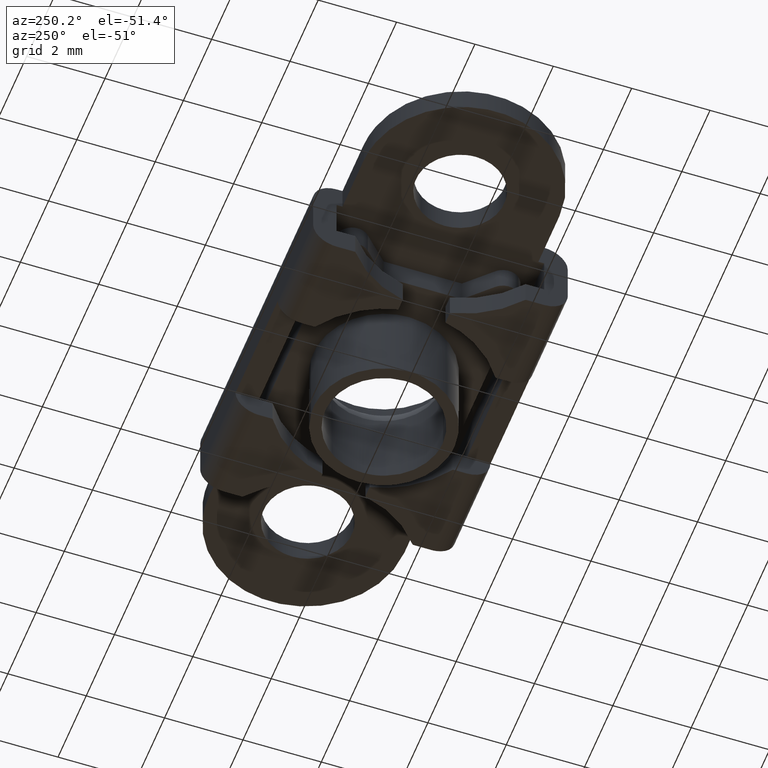
[diagram: clean part render]
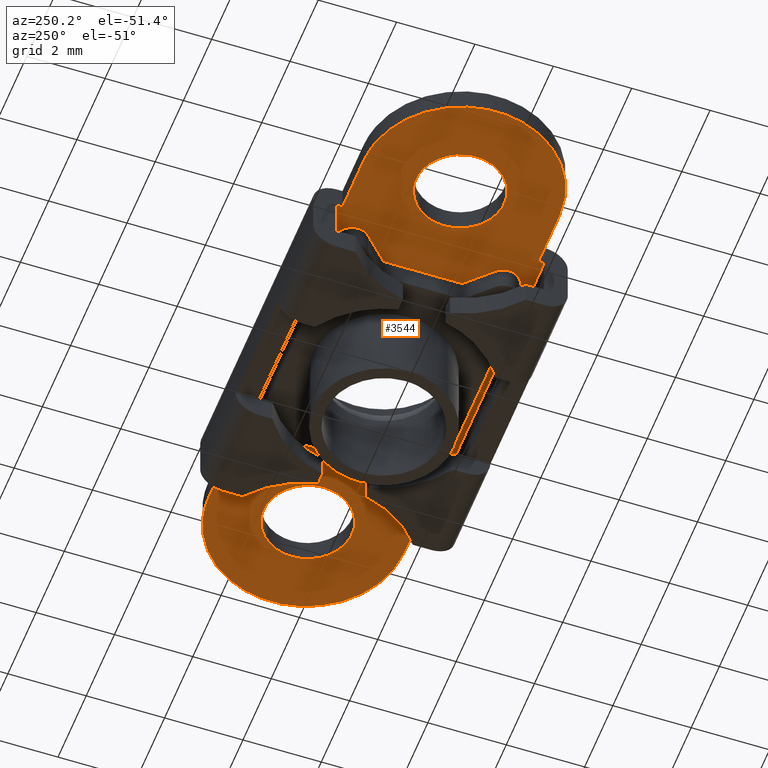
[diagram: same view with one face highlighted and labeled with its STEP entity id]
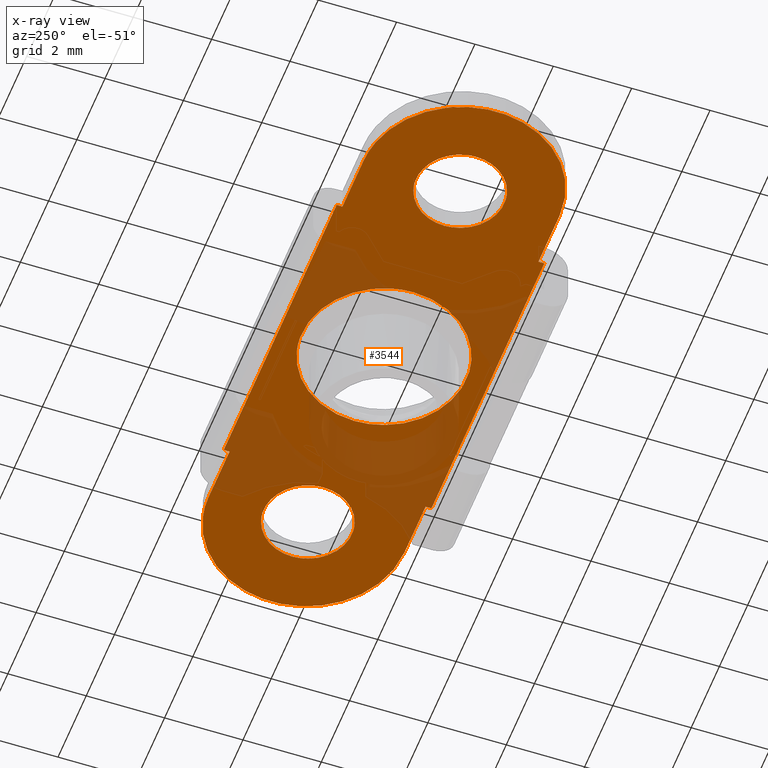
[diagram: x-ray of the same camera — body ghosted, the highlighted face saturated]
A machine part, auxiliary view. The second image highlights one B-rep face of the part: STEP entity #3544.
The next image is the same camera in x-ray: the body ghosted, the highlighted face saturated — about 28% of this face is hidden behind the body in this view.
In plain terms, the highlighted face is a freeform B-spline surface patch.
Its self-contained STEP definition (entity closure, byte-faithful):
#1241=CARTESIAN_POINT('',(0.128201933032470,2.096083076685353,-0.600000000000045));
#1242=VERTEX_POINT('',#1241);
#1248=CARTESIAN_POINT('',(2.100000000000000,0.0,-0.600000000000045));
#1249=VERTEX_POINT('',#1248);
#1250=CARTESIAN_POINT('',(2.100000000000000,0.0,-0.600000000000045));
#1251=CARTESIAN_POINT('',(2.100000000000000,1.975482740484448,-0.600000000000045));
#1252=CARTESIAN_POINT('',(0.128201933032470,2.096083076685353,-0.600000000000045));
#1260=(BOUNDED_CURVE()B_SPLINE_CURVE(2,(#1250,#1251,#1252),.UNSPECIFIED.,.F.,.U.)B_SPLINE_CURVE_WITH_KNOTS((3,3),(0.500000000000000,0.739332962240442),.UNSPECIFIED.)CURVE()GEOMETRIC_REPRESENTATION_ITEM()RATIONAL_B_SPLINE_CURVE((1.0,0.719603993284954,0.976072041669930))REPRESENTATION_ITEM(''));
#1261=EDGE_CURVE('',#1249,#1242,#1260,.T.);
#1263=CARTESIAN_POINT('',(-0.247871037823658,-2.085320106987769,-0.600000000000045));
#1264=VERTEX_POINT('',#1263);
#1265=CARTESIAN_POINT('',(-0.247871037823658,-2.085320106987769,-0.600000000000045));
#1266=CARTESIAN_POINT('',(-0.124369787275058,-2.100000000000000,-0.600000000000045));
#1267=CARTESIAN_POINT('',(0.0,-2.100000000000000,-0.600000000000045));
#1268=CARTESIAN_POINT('',(2.100000000000000,-2.100000000000000,-0.600000000000045));
#1269=CARTESIAN_POINT('',(2.100000000000000,0.0,-0.600000000000045));
#1277=(BOUNDED_CURVE()B_SPLINE_CURVE(2,(#1265,#1266,#1267,#1268,#1269),.UNSPECIFIED.,.F.,.U.)B_SPLINE_CURVE_WITH_KNOTS((3,2,3),(0.229562612094162,0.250000000000000,0.500000000000000),.UNSPECIFIED.)CURVE()GEOMETRIC_REPRESENTATION_ITEM()RATIONAL_B_SPLINE_CURVE((0.956027025807632,0.976056110688480,1.0,0.707106781186548,1.0))REPRESENTATION_ITEM(''));
#1278=EDGE_CURVE('',#1264,#1249,#1277,.T.);
#1322=CARTESIAN_POINT('',(-2.100000000000000,0.0,-0.600000000000045));
#1323=VERTEX_POINT('',#1322);
#1324=CARTESIAN_POINT('',(-2.100000000000000,0.0,-0.600000000000045));
#1325=CARTESIAN_POINT('',(-2.100000000000001,-1.865168044655403,-0.600000000000045));
#1326=CARTESIAN_POINT('',(-0.247871037823658,-2.085320106987769,-0.600000000000045));
#1334=(BOUNDED_CURVE()B_SPLINE_CURVE(2,(#1324,#1325,#1326),.UNSPECIFIED.,.F.,.U.)B_SPLINE_CURVE_WITH_KNOTS((3,3),(0.0,0.229562612094162),.UNSPECIFIED.)CURVE()GEOMETRIC_REPRESENTATION_ITEM()RATIONAL_B_SPLINE_CURVE((1.0,0.731050670498068,0.956027025807632))REPRESENTATION_ITEM(''));
#1335=EDGE_CURVE('',#1323,#1264,#1334,.T.);
#1337=CARTESIAN_POINT('',(0.128201933032470,2.096083076685354,-0.600000000000045));
#1338=CARTESIAN_POINT('',(0.064160802936333,2.100000000000000,-0.600000000000045));
#1339=CARTESIAN_POINT('',(0.0,2.100000000000000,-0.600000000000045));
#1340=CARTESIAN_POINT('',(-2.100000000000000,2.100000000000000,-0.600000000000045));
#1341=CARTESIAN_POINT('',(-2.100000000000000,0.0,-0.600000000000045));
#1349=(BOUNDED_CURVE()B_SPLINE_CURVE(2,(#1337,#1338,#1339,#1340,#1341),.UNSPECIFIED.,.F.,.U.)B_SPLINE_CURVE_WITH_KNOTS((3,2,3),(0.739332962240442,0.750000000000000,1.0),.UNSPECIFIED.)CURVE()GEOMETRIC_REPRESENTATION_ITEM()RATIONAL_B_SPLINE_CURVE((0.976072041669931,0.987502787901594,1.0,0.707106781186548,1.0))REPRESENTATION_ITEM(''));
#1350=EDGE_CURVE('',#1242,#1323,#1349,.T.);
#1427=CARTESIAN_POINT('',(5.468679606994622,1.122901648223505,-0.600000000000045));
#1428=VERTEX_POINT('',#1427);
#1434=CARTESIAN_POINT('',(6.525000000000000,0.0,-0.600000000000045));
#1435=VERTEX_POINT('',#1434);
#1436=CARTESIAN_POINT('',(6.525000000000000,0.0,-0.600000000000045));
#1437=CARTESIAN_POINT('',(6.525000000000000,1.058294325235089,-0.600000000000045));
#1438=CARTESIAN_POINT('',(5.468679606994622,1.122901648223505,-0.600000000000045));
#1446=(BOUNDED_CURVE()B_SPLINE_CURVE(2,(#1436,#1437,#1438),.UNSPECIFIED.,.F.,.U.)B_SPLINE_CURVE_WITH_KNOTS((3,3),(0.500000000000000,0.739332962236465),.UNSPECIFIED.)CURVE()GEOMETRIC_REPRESENTATION_ITEM()RATIONAL_B_SPLINE_CURVE((1.0,0.719603993289613,0.976072041661407))REPRESENTATION_ITEM(''));
#1447=EDGE_CURVE('',#1435,#1428,#1446,.T.);
#1449=CARTESIAN_POINT('',(5.267211486004993,-1.117135717158393,-0.600000000000045));
#1450=VERTEX_POINT('',#1449);
#1451=CARTESIAN_POINT('',(5.267211486004993,-1.117135717158393,-0.600000000000045));
#1452=CARTESIAN_POINT('',(5.333372865385383,-1.125000000000000,-0.600000000000045));
#1453=CARTESIAN_POINT('',(5.400000000000000,-1.125000000000000,-0.600000000000045));
#1454=CARTESIAN_POINT('',(6.525000000000000,-1.125000000000000,-0.600000000000045));
#1455=CARTESIAN_POINT('',(6.525000000000000,0.0,-0.600000000000045));
#1463=(BOUNDED_CURVE()B_SPLINE_CURVE(2,(#1451,#1452,#1453,#1454,#1455),.UNSPECIFIED.,.F.,.U.)B_SPLINE_CURVE_WITH_KNOTS((3,2,3),(0.229562473513782,0.250000000000000,0.500000000000000),.UNSPECIFIED.)CURVE()GEOMETRIC_REPRESENTATION_ITEM()RATIONAL_B_SPLINE_CURVE((0.956026754184236,0.976055948331466,1.0,0.707106781186547,1.0))REPRESENTATION_ITEM(''));
#1464=EDGE_CURVE('',#1450,#1435,#1463,.T.);
#1508=CARTESIAN_POINT('',(4.275000000000000,0.0,-0.600000000000045));
#1509=VERTEX_POINT('',#1508);
#1510=CARTESIAN_POINT('',(4.275000000000000,0.0,-0.600000000000045));
#1511=CARTESIAN_POINT('',(4.275000000000000,-0.999196341684201,-0.600000000000045));
#1512=CARTESIAN_POINT('',(5.267211486004993,-1.117135717158393,-0.600000000000045));
#1520=(BOUNDED_CURVE()B_SPLINE_CURVE(2,(#1510,#1511,#1512),.UNSPECIFIED.,.F.,.U.)B_SPLINE_CURVE_WITH_KNOTS((3,3),(0.0,0.229562473513782),.UNSPECIFIED.)CURVE()GEOMETRIC_REPRESENTATION_ITEM()RATIONAL_B_SPLINE_CURVE((1.0,0.731050832855082,0.956026754184236))REPRESENTATION_ITEM(''));
#1521=EDGE_CURVE('',#1509,#1450,#1520,.T.);
#1523=CARTESIAN_POINT('',(5.468679606994622,1.122901648223505,-0.600000000000045));
#1524=CARTESIAN_POINT('',(5.434371858728872,1.125000000000000,-0.600000000000045));
#1525=CARTESIAN_POINT('',(5.400000000000000,1.125000000000000,-0.600000000000045));
#1526=CARTESIAN_POINT('',(4.275000000000000,1.125000000000000,-0.600000000000045));
#1527=CARTESIAN_POINT('',(4.275000000000000,0.0,-0.600000000000045));
#1535=(BOUNDED_CURVE()B_SPLINE_CURVE(2,(#1523,#1524,#1525,#1526,#1527),.UNSPECIFIED.,.F.,.U.)B_SPLINE_CURVE_WITH_KNOTS((3,2,3),(0.739332962236465,0.750000000000000,1.0),.UNSPECIFIED.)CURVE()GEOMETRIC_REPRESENTATION_ITEM()RATIONAL_B_SPLINE_CURVE((0.976072041661407,0.987502787896934,1.0,0.707106781186547,1.0))REPRESENTATION_ITEM(''));
#1536=EDGE_CURVE('',#1428,#1509,#1535,.T.);
#1613=CARTESIAN_POINT('',(-5.331320393005379,1.122901648223505,-0.600000000000045));
#1614=VERTEX_POINT('',#1613);
#1620=CARTESIAN_POINT('',(-4.275000000000000,0.0,-0.600000000000045));
#1621=VERTEX_POINT('',#1620);
#1622=CARTESIAN_POINT('',(-4.275000000000000,0.0,-0.600000000000045));
#1623=CARTESIAN_POINT('',(-4.275000000000000,1.058294325235089,-0.600000000000045));
#1624=CARTESIAN_POINT('',(-5.331320393005379,1.122901648223505,-0.600000000000045));
#1632=(BOUNDED_CURVE()B_SPLINE_CURVE(2,(#1622,#1623,#1624),.UNSPECIFIED.,.F.,.U.)B_SPLINE_CURVE_WITH_KNOTS((3,3),(0.500000000000000,0.739332962236465),.UNSPECIFIED.)CURVE()GEOMETRIC_REPRESENTATION_ITEM()RATIONAL_B_SPLINE_CURVE((1.0,0.719603993289613,0.976072041661407))REPRESENTATION_ITEM(''));
#1633=EDGE_CURVE('',#1621,#1614,#1632,.T.);
#1635=CARTESIAN_POINT('',(-5.532788513995008,-1.117135717158393,-0.600000000000045));
#1636=VERTEX_POINT('',#1635);
#1637=CARTESIAN_POINT('',(-5.532788513995008,-1.117135717158393,-0.600000000000045));
#1638=CARTESIAN_POINT('',(-5.466627134614619,-1.125000000000000,-0.600000000000045));
#1639=CARTESIAN_POINT('',(-5.400000000000000,-1.125000000000000,-0.600000000000045));
#1640=CARTESIAN_POINT('',(-4.275000000000000,-1.125000000000000,-0.600000000000045));
#1641=CARTESIAN_POINT('',(-4.275000000000000,0.0,-0.600000000000045));
#1649=(BOUNDED_CURVE()B_SPLINE_CURVE(2,(#1637,#1638,#1639,#1640,#1641),.UNSPECIFIED.,.F.,.U.)B_SPLINE_CURVE_WITH_KNOTS((3,2,3),(0.229562473513782,0.250000000000000,0.500000000000000),.UNSPECIFIED.)CURVE()GEOMETRIC_REPRESENTATION_ITEM()RATIONAL_B_SPLINE_CURVE((0.956026754184236,0.976055948331466,1.0,0.707106781186547,1.0))REPRESENTATION_ITEM(''));
#1650=EDGE_CURVE('',#1636,#1621,#1649,.T.);
#1694=CARTESIAN_POINT('',(-6.525000000000000,0.0,-0.600000000000045));
#1695=VERTEX_POINT('',#1694);
#1696=CARTESIAN_POINT('',(-6.525000000000000,0.0,-0.600000000000045));
#1697=CARTESIAN_POINT('',(-6.525000000000000,-0.999196341684203,-0.600000000000045));
#1698=CARTESIAN_POINT('',(-5.532788513995008,-1.117135717158393,-0.600000000000045));
#1706=(BOUNDED_CURVE()B_SPLINE_CURVE(2,(#1696,#1697,#1698),.UNSPECIFIED.,.F.,.U.)B_SPLINE_CURVE_WITH_KNOTS((3,3),(0.0,0.229562473513782),.UNSPECIFIED.)CURVE()GEOMETRIC_REPRESENTATION_ITEM()RATIONAL_B_SPLINE_CURVE((1.0,0.731050832855081,0.956026754184236))REPRESENTATION_ITEM(''));
#1707=EDGE_CURVE('',#1695,#1636,#1706,.T.);
#1709=CARTESIAN_POINT('',(-5.331320393005379,1.122901648223504,-0.600000000000045));
#1710=CARTESIAN_POINT('',(-5.365628141271131,1.125000000000000,-0.600000000000045));
#1711=CARTESIAN_POINT('',(-5.400000000000000,1.125000000000000,-0.600000000000045));
#1712=CARTESIAN_POINT('',(-6.525000000000000,1.125000000000000,-0.600000000000045));
#1713=CARTESIAN_POINT('',(-6.525000000000000,0.0,-0.600000000000045));
#1721=(BOUNDED_CURVE()B_SPLINE_CURVE(2,(#1709,#1710,#1711,#1712,#1713),.UNSPECIFIED.,.F.,.U.)B_SPLINE_CURVE_WITH_KNOTS((3,2,3),(0.739332962236465,0.750000000000000,1.0),.UNSPECIFIED.)CURVE()GEOMETRIC_REPRESENTATION_ITEM()RATIONAL_B_SPLINE_CURVE((0.976072041661407,0.987502787896934,1.0,0.707106781186547,1.0))REPRESENTATION_ITEM(''));
#1722=EDGE_CURVE('',#1614,#1695,#1721,.T.);
#3035=CARTESIAN_POINT('',(-5.500000000000000,-2.500000000000000,-0.600000000000045));
#3036=VERTEX_POINT('',#3035);
#3042=CARTESIAN_POINT('',(-4.0,-2.500000000000000,-0.600000000000045));
#3043=VERTEX_POINT('',#3042);
#3044=CARTESIAN_POINT('',(-5.500000000000000,-2.500000000000000,-0.600000000000045));
#3045=CARTESIAN_POINT('',(-4.0,-2.500000000000000,-0.600000000000045));
#3046=QUASI_UNIFORM_CURVE('',1,(#3044,#3045),.UNSPECIFIED.,.F.,.U.);
#3047=EDGE_CURVE('',#3036,#3043,#3046,.T.);
#3092=CARTESIAN_POINT('',(-5.500000000000000,2.500000000000000,-0.600000000000045));
#3093=VERTEX_POINT('',#3092);
#3099=CARTESIAN_POINT('',(-5.500000000000000,-2.500000000000000,-0.600000000000045));
#3100=CARTESIAN_POINT('',(-8.0,-2.500000000000000,-0.600000000000045));
#3101=CARTESIAN_POINT('',(-8.0,0.0,-0.600000000000045));
#3102=CARTESIAN_POINT('',(-8.0,2.500000000000000,-0.600000000000045));
#3103=CARTESIAN_POINT('',(-5.500000000000000,2.500000000000000,-0.600000000000045));
#3111=(BOUNDED_CURVE()B_SPLINE_CURVE(2,(#3099,#3100,#3101,#3102,#3103),.UNSPECIFIED.,.F.,.U.)B_SPLINE_CURVE_WITH_KNOTS((3,2,3),(0.0,0.500000000000000,1.0),.UNSPECIFIED.)CURVE()GEOMETRIC_REPRESENTATION_ITEM()RATIONAL_B_SPLINE_CURVE((1.0,0.707106781186548,1.0,0.707106781186548,1.0))REPRESENTATION_ITEM(''));
#3112=EDGE_CURVE('',#3036,#3093,#3111,.T.);
#3130=CARTESIAN_POINT('',(-4.0,2.499999999999901,-0.600000000000045));
#3131=VERTEX_POINT('',#3130);
#3137=CARTESIAN_POINT('',(-4.0,2.499999999999901,-0.600000000000045));
#3138=CARTESIAN_POINT('',(-5.500000000000000,2.500000000000000,-0.600000000000045));
#3139=QUASI_UNIFORM_CURVE('',1,(#3137,#3138),.UNSPECIFIED.,.F.,.U.);
#3140=EDGE_CURVE('',#3131,#3093,#3139,.T.);
#3160=CARTESIAN_POINT('',(4.0,-2.500000000000000,-0.600000000000045));
#3161=VERTEX_POINT('',#3160);
#3167=CARTESIAN_POINT('',(5.500000000000000,-2.500000000000000,-0.600000000000045));
#3168=VERTEX_POINT('',#3167);
#3169=CARTESIAN_POINT('',(5.500000000000000,-2.500000000000000,-0.600000000000045));
#3170=CARTESIAN_POINT('',(4.0,-2.500000000000000,-0.600000000000045));
#3171=QUASI_UNIFORM_CURVE('',1,(#3169,#3170),.UNSPECIFIED.,.F.,.U.);
#3172=EDGE_CURVE('',#3168,#3161,#3171,.T.);
#3218=CARTESIAN_POINT('',(5.500000000000000,2.500000000000000,-0.600000000000045));
#3219=VERTEX_POINT('',#3218);
#3220=CARTESIAN_POINT('',(5.500000000000000,-2.500000000000000,-0.600000000000045));
#3221=CARTESIAN_POINT('',(8.0,-2.500000000000000,-0.600000000000045));
#3222=CARTESIAN_POINT('',(8.0,0.0,-0.600000000000045));
#3223=CARTESIAN_POINT('',(8.0,2.500000000000000,-0.600000000000045));
#3224=CARTESIAN_POINT('',(5.500000000000000,2.500000000000000,-0.600000000000045));
#3232=(BOUNDED_CURVE()B_SPLINE_CURVE(2,(#3220,#3221,#3222,#3223,#3224),.UNSPECIFIED.,.F.,.U.)B_SPLINE_CURVE_WITH_KNOTS((3,2,3),(0.0,0.500000000000000,1.0),.UNSPECIFIED.)CURVE()GEOMETRIC_REPRESENTATION_ITEM()RATIONAL_B_SPLINE_CURVE((1.0,0.707106781186548,1.0,0.707106781186548,1.0))REPRESENTATION_ITEM(''));
#3233=EDGE_CURVE('',#3168,#3219,#3232,.T.);
#3256=CARTESIAN_POINT('',(4.0,2.499999999999901,-0.600000000000045));
#3257=VERTEX_POINT('',#3256);
#3258=CARTESIAN_POINT('',(4.0,2.499999999999901,-0.600000000000045));
#3259=CARTESIAN_POINT('',(5.500000000000000,2.500000000000000,-0.600000000000045));
#3260=QUASI_UNIFORM_CURVE('',1,(#3258,#3259),.UNSPECIFIED.,.F.,.U.);
#3261=EDGE_CURVE('',#3257,#3219,#3260,.T.);
#3290=CARTESIAN_POINT('',(4.0,2.650000000000000,-0.600000000000000));
#3291=VERTEX_POINT('',#3290);
#3292=CARTESIAN_POINT('',(4.0,2.650000000000000,-0.600000000000000));
#3293=CARTESIAN_POINT('',(4.0,2.499999999999901,-0.600000000000045));
#3294=QUASI_UNIFORM_CURVE('',1,(#3292,#3293),.UNSPECIFIED.,.F.,.U.);
#3295=EDGE_CURVE('',#3291,#3257,#3294,.T.);
#3321=CARTESIAN_POINT('',(-4.0,2.650000000000000,-0.600000000000000));
#3322=VERTEX_POINT('',#3321);
#3328=CARTESIAN_POINT('',(-4.0,2.650000000000000,-0.600000000000000));
#3329=CARTESIAN_POINT('',(-4.0,2.499999999999901,-0.600000000000045));
#3330=QUASI_UNIFORM_CURVE('',1,(#3328,#3329),.UNSPECIFIED.,.F.,.U.);
#3331=EDGE_CURVE('',#3322,#3131,#3330,.T.);
#3439=CARTESIAN_POINT('',(4.0,-2.650000000000000,-0.600000000000000));
#3440=VERTEX_POINT('',#3439);
#3446=CARTESIAN_POINT('',(4.0,-2.500000000000000,-0.600000000000045));
#3447=CARTESIAN_POINT('',(4.0,-2.650000000000000,-0.600000000000000));
#3448=QUASI_UNIFORM_CURVE('',1,(#3446,#3447),.UNSPECIFIED.,.F.,.U.);
#3449=EDGE_CURVE('',#3161,#3440,#3448,.T.);
#3468=CARTESIAN_POINT('',(-4.0,-2.650000000000000,-0.600000000000000));
#3469=VERTEX_POINT('',#3468);
#3470=CARTESIAN_POINT('',(-4.0,-2.500000000000000,-0.600000000000045));
#3471=CARTESIAN_POINT('',(-4.0,-2.650000000000000,-0.600000000000000));
#3472=QUASI_UNIFORM_CURVE('',1,(#3470,#3471),.UNSPECIFIED.,.F.,.U.);
#3473=EDGE_CURVE('',#3043,#3469,#3472,.T.);
#3494=CARTESIAN_POINT('',(-4.0,-2.650000000000000,-0.600000000000000));
#3495=CARTESIAN_POINT('',(4.0,-2.650000000000000,-0.600000000000000));
#3496=QUASI_UNIFORM_CURVE('',1,(#3494,#3495),.UNSPECIFIED.,.F.,.U.);
#3497=EDGE_CURVE('',#3469,#3440,#3496,.T.);
#3503=CARTESIAN_POINT('',(-8.799199968988887,2.914735089232787,-0.600000000000000));
#3504=CARTESIAN_POINT('',(-8.799199968988887,-2.914735136618480,-0.600000000000000));
#3505=CARTESIAN_POINT('',(8.799200398142329,2.914735089232787,-0.600000000000000));
#3506=CARTESIAN_POINT('',(8.799200398142329,-2.914735136618480,-0.600000000000000));
#3507=B_SPLINE_SURFACE_WITH_KNOTS('',1,1,((#3503,#3505),(#3504,#3506)),.UNSPECIFIED.,.F.,.F.,.U.,(2,2),(2,2),(0.0,5.829470225851267),(0.0,17.598400367131219),.UNSPECIFIED.);
#3508=CARTESIAN_POINT('',(4.0,2.650000000000000,-0.600000000000000));
#3509=CARTESIAN_POINT('',(-4.0,2.650000000000000,-0.600000000000000));
#3510=QUASI_UNIFORM_CURVE('',1,(#3508,#3509),.UNSPECIFIED.,.F.,.U.);
#3511=EDGE_CURVE('',#3291,#3322,#3510,.T.);
#3512=ORIENTED_EDGE('',*,*,#3511,.F.);
#3513=ORIENTED_EDGE('',*,*,#3295,.T.);
#3514=ORIENTED_EDGE('',*,*,#3261,.T.);
#3515=ORIENTED_EDGE('',*,*,#3233,.F.);
#3516=ORIENTED_EDGE('',*,*,#3172,.T.);
#3517=ORIENTED_EDGE('',*,*,#3449,.T.);
#3518=ORIENTED_EDGE('',*,*,#3497,.F.);
#3519=ORIENTED_EDGE('',*,*,#3473,.F.);
#3520=ORIENTED_EDGE('',*,*,#3047,.F.);
#3521=ORIENTED_EDGE('',*,*,#3112,.T.);
#3522=ORIENTED_EDGE('',*,*,#3140,.F.);
#3523=ORIENTED_EDGE('',*,*,#3331,.F.);
#3524=EDGE_LOOP('',(#3512,#3513,#3514,#3515,#3516,#3517,#3518,#3519,#3520,#3521,#3522,#3523));
#3525=FACE_OUTER_BOUND('',#3524,.T.);
#3526=ORIENTED_EDGE('',*,*,#1633,.T.);
#3527=ORIENTED_EDGE('',*,*,#1722,.T.);
#3528=ORIENTED_EDGE('',*,*,#1707,.T.);
#3529=ORIENTED_EDGE('',*,*,#1650,.T.);
#3530=EDGE_LOOP('',(#3526,#3527,#3528,#3529));
#3531=FACE_BOUND('',#3530,.T.);
#3532=ORIENTED_EDGE('',*,*,#1447,.T.);
#3533=ORIENTED_EDGE('',*,*,#1536,.T.);
#3534=ORIENTED_EDGE('',*,*,#1521,.T.);
#3535=ORIENTED_EDGE('',*,*,#1464,.T.);
#3536=EDGE_LOOP('',(#3532,#3533,#3534,#3535));
#3537=FACE_BOUND('',#3536,.T.);
#3538=ORIENTED_EDGE('',*,*,#1261,.T.);
#3539=ORIENTED_EDGE('',*,*,#1350,.T.);
#3540=ORIENTED_EDGE('',*,*,#1335,.T.);
#3541=ORIENTED_EDGE('',*,*,#1278,.T.);
#3542=EDGE_LOOP('',(#3538,#3539,#3540,#3541));
#3543=FACE_BOUND('',#3542,.T.);
#3544=ADVANCED_FACE('',(#3525,#3531,#3537,#3543),#3507,.F.);